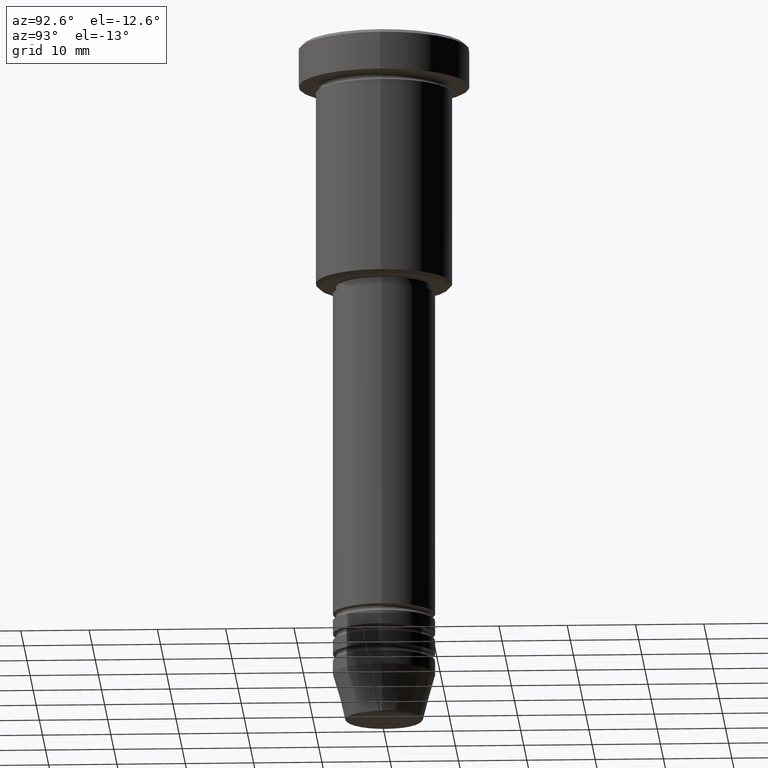
[diagram: clean part render]
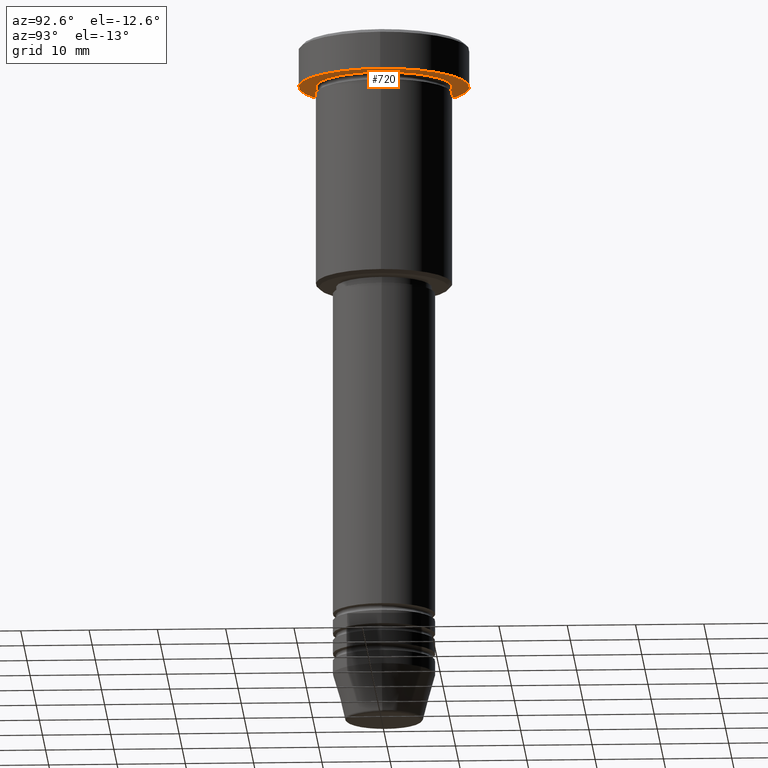
[diagram: same view with one face highlighted and labeled with its STEP entity id]
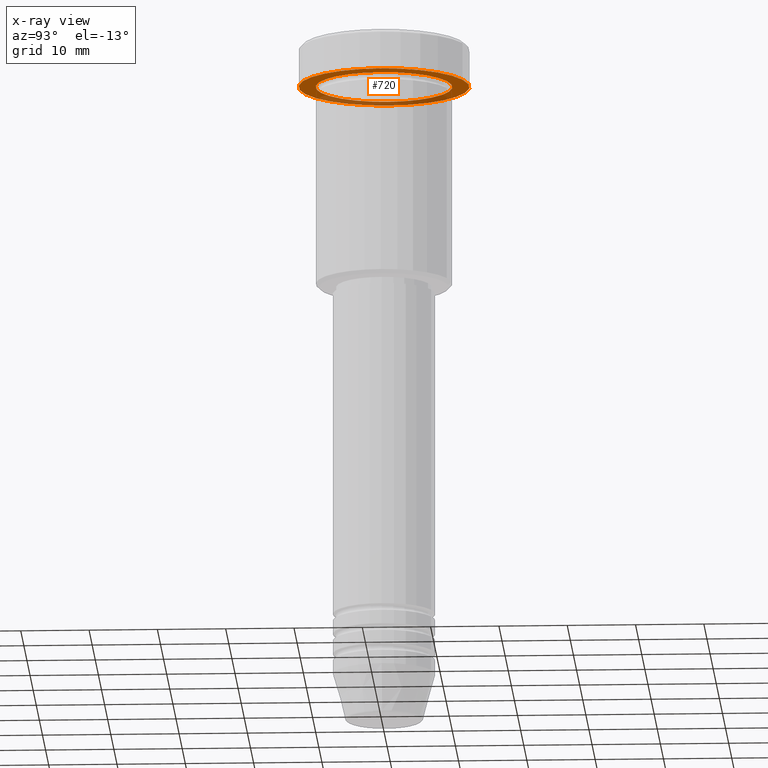
[diagram: x-ray of the same camera — body ghosted, the highlighted face saturated]
A machine part, auxiliary view. The second image highlights one B-rep face of the part: STEP entity #720.
The next image is the same camera in x-ray: the body ghosted, the highlighted face saturated — about 30% of this face is hidden behind the body in this view.
In plain terms, the highlighted planar face has unit normal (0, 0, -1).
Its self-contained STEP definition (entity closure, byte-faithful):
#21 = EDGE_CURVE ( 'NONE', #497, #1048, #1008, .T. ) ;
#29 = FACE_BOUND ( 'NONE', #912, .T. ) ;
#77 = CARTESIAN_POINT ( 'NONE',  ( 0.000000000000000000, 0.000000000000000000, -5.999999999999996447 ) ) ;
#97 = DIRECTION ( 'NONE',  ( -1.000000000000000000, 0.000000000000000000, 0.000000000000000000 ) ) ;
#104 = CARTESIAN_POINT ( 'NONE',  ( -12.50000000000000000, 1.530808498934191521E-15, -5.999999999999996447 ) ) ;
#119 = DIRECTION ( 'NONE',  ( -0.000000000000000000, -0.000000000000000000, 1.000000000000000000 ) ) ;
#132 = ORIENTED_EDGE ( 'NONE', *, *, #21, .F. ) ;
#146 = VERTEX_POINT ( 'NONE', #1139 ) ;
#190 = CARTESIAN_POINT ( 'NONE',  ( 12.50000000000000000, 0.000000000000000000, -5.999999999999996447 ) ) ;
#221 = PLANE ( 'NONE',  #966 ) ;
#277 = DIRECTION ( 'NONE',  ( -0.000000000000000000, -0.000000000000000000, 1.000000000000000000 ) ) ;
#292 = DIRECTION ( 'NONE',  ( -1.000000000000000000, 0.000000000000000000, 0.000000000000000000 ) ) ;
#312 = VERTEX_POINT ( 'NONE', #481 ) ;
#385 = FACE_OUTER_BOUND ( 'NONE', #491, .T. ) ;
#391 = CIRCLE ( 'NONE', #782, 10.00000000000000000 ) ;
#392 = DIRECTION ( 'NONE',  ( -1.000000000000000000, 0.000000000000000000, -0.000000000000000000 ) ) ;
#411 = ORIENTED_EDGE ( 'NONE', *, *, #826, .T. ) ;
#481 = CARTESIAN_POINT ( 'NONE',  ( 10.00000000000000000, 1.224646799147353256E-15, -5.999999999999996447 ) ) ;
#491 = EDGE_LOOP ( 'NONE', ( #132, #1058 ) ) ;
#497 = VERTEX_POINT ( 'NONE', #190 ) ;
#558 = CARTESIAN_POINT ( 'NONE',  ( 0.000000000000000000, 0.000000000000000000, -5.999999999999996447 ) ) ;
#709 = AXIS2_PLACEMENT_3D ( 'NONE', #558, #119, #292 ) ;
#720 = ADVANCED_FACE ( 'NONE', ( #29, #385 ), #221, .T. ) ;
#727 = DIRECTION ( 'NONE',  ( 1.000000000000000000, 0.000000000000000000, 0.000000000000000000 ) ) ;
#771 = ORIENTED_EDGE ( 'NONE', *, *, #1001, .T. ) ;
#782 = AXIS2_PLACEMENT_3D ( 'NONE', #1016, #915, #97 ) ;
#806 = DIRECTION ( 'NONE',  ( -0.000000000000000000, -0.000000000000000000, 1.000000000000000000 ) ) ;
#815 = AXIS2_PLACEMENT_3D ( 'NONE', #77, #806, #913 ) ;
#826 = EDGE_CURVE ( 'NONE', #312, #146, #1103, .T. ) ;
#912 = EDGE_LOOP ( 'NONE', ( #771, #411 ) ) ;
#913 = DIRECTION ( 'NONE',  ( 1.000000000000000000, 0.000000000000000000, 0.000000000000000000 ) ) ;
#915 = DIRECTION ( 'NONE',  ( -0.000000000000000000, -0.000000000000000000, 1.000000000000000000 ) ) ;
#956 = AXIS2_PLACEMENT_3D ( 'NONE', #1093, #277, #727 ) ;
#966 = AXIS2_PLACEMENT_3D ( 'NONE', #1132, #1043, #392 ) ;
#1001 = EDGE_CURVE ( 'NONE', #146, #312, #391, .T. ) ;
#1008 = CIRCLE ( 'NONE', #815, 12.50000000000000000 ) ;
#1015 = CIRCLE ( 'NONE', #956, 12.50000000000000000 ) ;
#1016 = CARTESIAN_POINT ( 'NONE',  ( 0.000000000000000000, 0.000000000000000000, -5.999999999999996447 ) ) ;
#1043 = DIRECTION ( 'NONE',  ( 0.000000000000000000, 0.000000000000000000, -1.000000000000000000 ) ) ;
#1048 = VERTEX_POINT ( 'NONE', #104 ) ;
#1058 = ORIENTED_EDGE ( 'NONE', *, *, #1062, .F. ) ;
#1062 = EDGE_CURVE ( 'NONE', #1048, #497, #1015, .T. ) ;
#1093 = CARTESIAN_POINT ( 'NONE',  ( 0.000000000000000000, 0.000000000000000000, -5.999999999999996447 ) ) ;
#1103 = CIRCLE ( 'NONE', #709, 10.00000000000000000 ) ;
#1132 = CARTESIAN_POINT ( 'NONE',  ( 0.000000000000000000, 12.50000000000000000, -5.999999999999996447 ) ) ;
#1139 = CARTESIAN_POINT ( 'NONE',  ( -10.00000000000000000, 0.000000000000000000, -5.999999999999996447 ) ) ;